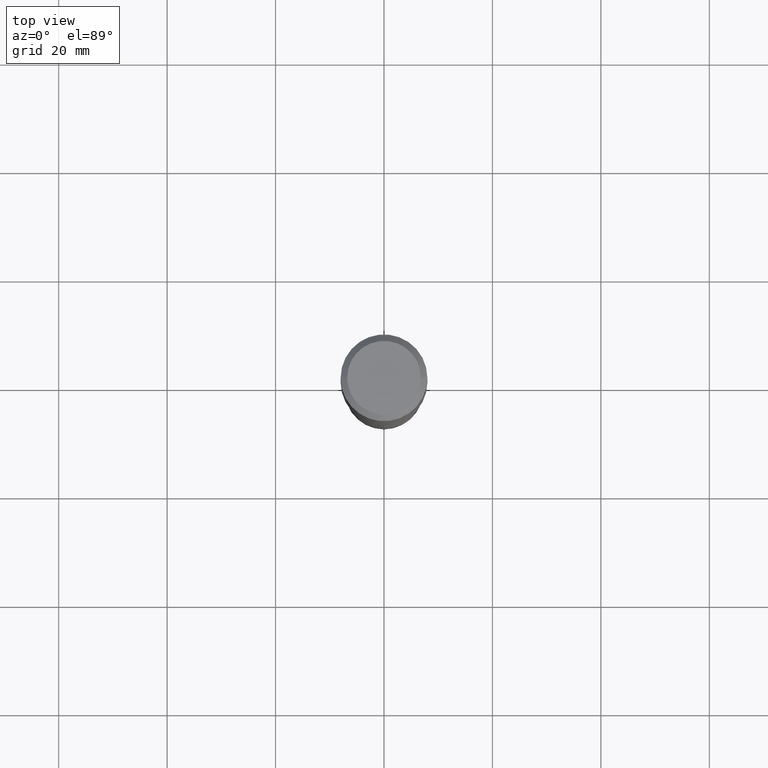
[diagram: clean part render]
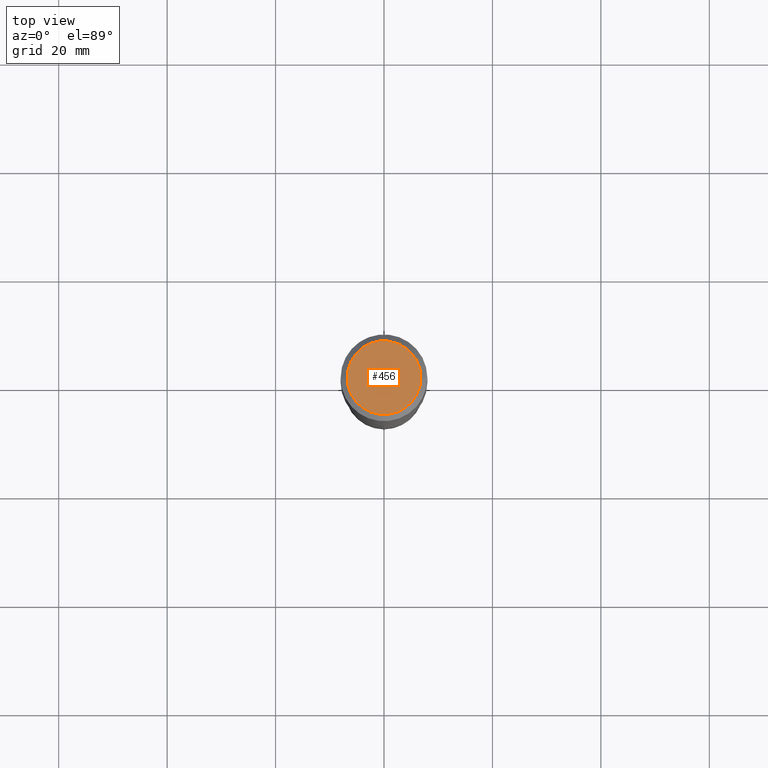
[diagram: same view with one face highlighted and labeled with its STEP entity id]
A machine part, top view. The second image highlights one B-rep face of the part: STEP entity #456.
In plain terms, the highlighted planar face has unit normal (0, -0, -1).
Its self-contained STEP definition (entity closure, byte-faithful):
#33 = PLANE ( 'NONE',  #311 ) ;
#44 = DIRECTION ( 'NONE',  ( -2.445468806185136597E-29, 3.491481338843145583E-15, 1.000000000000000000 ) ) ;
#94 = AXIS2_PLACEMENT_3D ( 'NONE', #121, #44, #165 ) ;
#112 = ORIENTED_EDGE ( 'NONE', *, *, #157, .T. ) ;
#117 = DIRECTION ( 'NONE',  ( 2.438088387897960049E-29, -3.491481338843145188E-15, -1.000000000000000000 ) ) ;
#121 = CARTESIAN_POINT ( 'NONE',  ( -1.001697619218022568E-46, 1.430158722866391086E-32, 4.096137381448112218E-18 ) ) ;
#153 = FACE_OUTER_BOUND ( 'NONE', #218, .T. ) ;
#157 = EDGE_CURVE ( 'NONE', #406, #325, #259, .T. ) ;
#163 = CARTESIAN_POINT ( 'NONE',  ( -1.001697619218022568E-46, 1.430158722866391086E-32, 4.096137381448112218E-18 ) ) ;
#165 = DIRECTION ( 'NONE',  ( 1.000000000000000000, -6.982962677686267499E-15, 4.876236838442819371E-29 ) ) ;
#174 = CARTESIAN_POINT ( 'NONE',  ( 0.2677074999999999871, -2.081133459643432233E-15, 4.096137381461924987E-18 ) ) ;
#175 = EDGE_CURVE ( 'NONE', #325, #406, #400, .T. ) ;
#190 = DIRECTION ( 'NONE',  ( 1.000000000000000000, -6.982962677686267499E-15, 4.876236838442819371E-29 ) ) ;
#200 = ORIENTED_EDGE ( 'NONE', *, *, #175, .T. ) ;
#218 = EDGE_LOOP ( 'NONE', ( #112, #200 ) ) ;
#229 = DIRECTION ( 'NONE',  ( -1.000000000000000000, 6.982962677686265922E-15, -4.876176775795935793E-29 ) ) ;
#259 = CIRCLE ( 'NONE', #432, 0.2677074999999999871 ) ;
#272 = CARTESIAN_POINT ( 'NONE',  ( -0.2677074999999999871, 1.951864634611843833E-15, 4.096137381434750116E-18 ) ) ;
#311 = AXIS2_PLACEMENT_3D ( 'NONE', #453, #117, #229 ) ;
#325 = VERTEX_POINT ( 'NONE', #174 ) ;
#380 = DIRECTION ( 'NONE',  ( -2.445468806185136597E-29, 3.491481338843145583E-15, 1.000000000000000000 ) ) ;
#400 = CIRCLE ( 'NONE', #94, 0.2677074999999999871 ) ;
#406 = VERTEX_POINT ( 'NONE', #272 ) ;
#432 = AXIS2_PLACEMENT_3D ( 'NONE', #163, #380, #190 ) ;
#453 = CARTESIAN_POINT ( 'NONE',  ( -5.008488096090112840E-47, 7.150793614331955432E-33, 2.048068690724056109E-18 ) ) ;
#456 = ADVANCED_FACE ( 'NONE', ( #153 ), #33, .F. ) ;